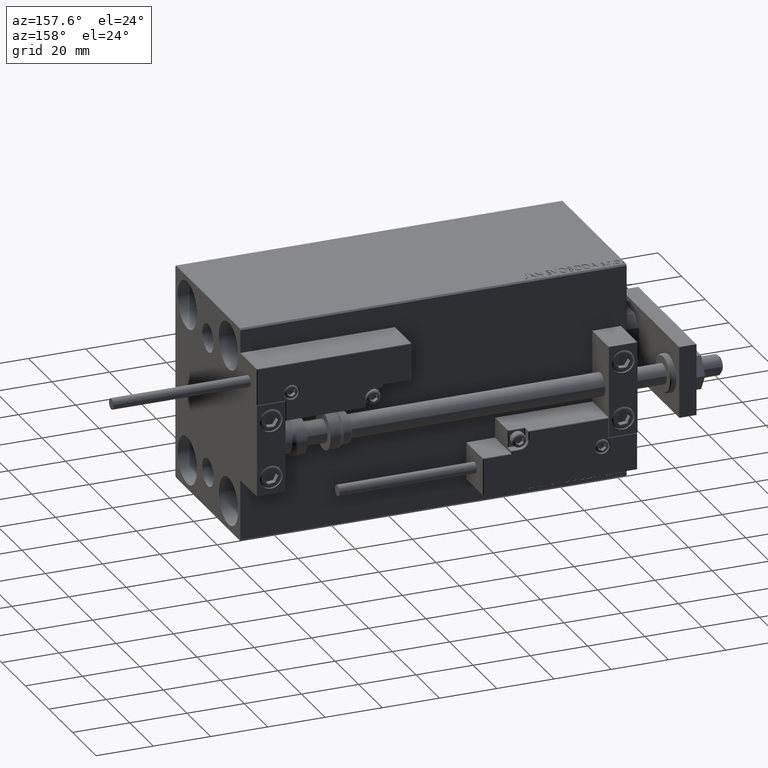
[diagram: clean part render]
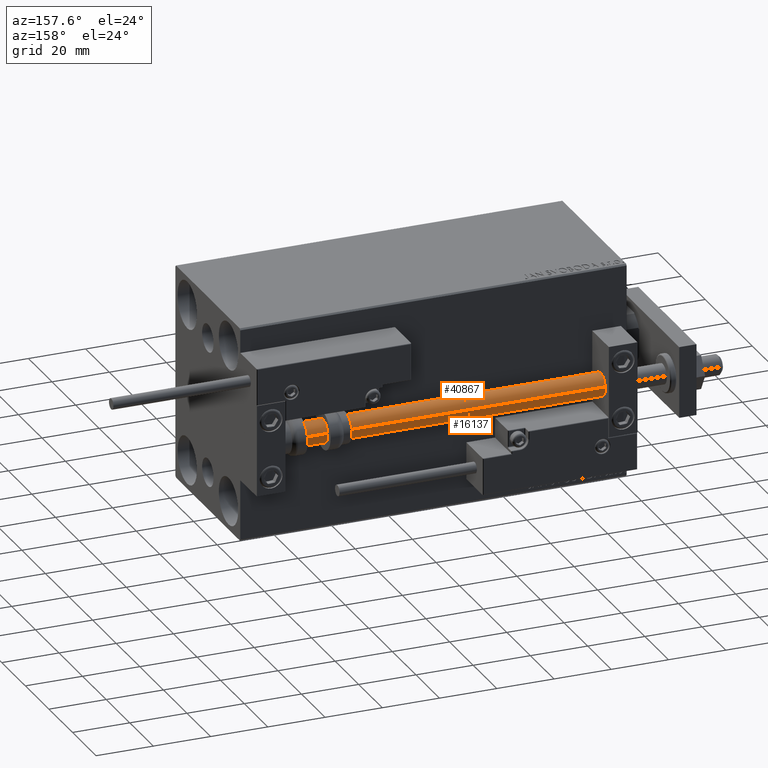
[diagram: same view with one multi-face feature highlighted, each face labeled with its STEP entity id]
A machine part, auxiliary view. The highlighted faces form ONE feature: a constant-radius fillet chain: 2 tangent blend faces with common blend radius 4 mm. The faces share edges in the B-rep.
Their STEP definitions:
[1] entity #16137 (Cylinder):
#208 = DIRECTION ( 'NONE',  ( 1.000000000000000000, 0.000000000000000000, 0.000000000000000000 ) ) ;
#1328 = DIRECTION ( 'NONE',  ( 1.000000000000000000, 0.000000000000000000, 0.000000000000000000 ) ) ;
#1593 = VECTOR ( 'NONE', #35626, 1000.000000000000000 ) ;
#1661 = LINE ( 'NONE', #47833, #13632 ) ;
#4549 = ORIENTED_EDGE ( 'NONE', *, *, #26701, .F. ) ;
#4806 = CIRCLE ( 'NONE', #25752, 4.000000000000000000 ) ;
#6650 = CARTESIAN_POINT ( 'NONE',  ( 4.000000000000000000, 4.898587196589412829E-16, 135.0000000000000000 ) ) ;
#8351 = VERTEX_POINT ( 'NONE', #39317 ) ;
#8923 = DIRECTION ( 'NONE',  ( -0.000000000000000000, -0.000000000000000000, -1.000000000000000000 ) ) ;
#11617 = ORIENTED_EDGE ( 'NONE', *, *, #12678, .T. ) ;
#12319 = EDGE_CURVE ( 'NONE', #23657, #43020, #24142, .T. ) ;
#12678 = EDGE_CURVE ( 'NONE', #8351, #23657, #1661, .T. ) ;
#13632 = VECTOR ( 'NONE', #40283, 1000.000000000000000 ) ;
#16137 = ADVANCED_FACE ( 'NONE', ( #16256 ), #20307, .T. ) ;
#16256 = FACE_OUTER_BOUND ( 'NONE', #39174, .T. ) ;
#18511 = AXIS2_PLACEMENT_3D ( 'NONE', #47028, #8923, #31679 ) ;
#20307 = CYLINDRICAL_SURFACE ( 'NONE', #18511, 4.000000000000000000 ) ;
#23657 = VERTEX_POINT ( 'NONE', #49065 ) ;
#24142 = CIRCLE ( 'NONE', #45050, 4.000000000000000000 ) ;
#25752 = AXIS2_PLACEMENT_3D ( 'NONE', #38584, #34800, #208 ) ;
#26701 = EDGE_CURVE ( 'NONE', #8351, #45949, #4806, .T. ) ;
#27781 = EDGE_CURVE ( 'NONE', #45949, #43020, #27820, .T. ) ;
#27820 = LINE ( 'NONE', #39422, #1593 ) ;
#28856 = CARTESIAN_POINT ( 'NONE',  ( 0.000000000000000000, 0.000000000000000000, 2.000000000000029310 ) ) ;
#31679 = DIRECTION ( 'NONE',  ( -1.000000000000000000, 0.000000000000000000, 0.000000000000000000 ) ) ;
#34800 = DIRECTION ( 'NONE',  ( 0.000000000000000000, 0.000000000000000000, 1.000000000000000000 ) ) ;
#35548 = CARTESIAN_POINT ( 'NONE',  ( 4.000000000000000000, 4.898587196589412829E-16, 2.000000000000029310 ) ) ;
#35626 = DIRECTION ( 'NONE',  ( -0.000000000000000000, -0.000000000000000000, -1.000000000000000000 ) ) ;
#36417 = DIRECTION ( 'NONE',  ( -0.000000000000000000, -0.000000000000000000, 1.000000000000000000 ) ) ;
#38584 = CARTESIAN_POINT ( 'NONE',  ( 0.000000000000000000, 0.000000000000000000, 135.0000000000000000 ) ) ;
#39174 = EDGE_LOOP ( 'NONE', ( #47890, #4549, #11617, #42653 ) ) ;
#39317 = CARTESIAN_POINT ( 'NONE',  ( -4.000000000000000000, 0.000000000000000000, 135.0000000000000000 ) ) ;
#39422 = CARTESIAN_POINT ( 'NONE',  ( 4.000000000000000000, 4.898587196589412829E-16, 135.0000000000000000 ) ) ;
#40283 = DIRECTION ( 'NONE',  ( -0.000000000000000000, -0.000000000000000000, -1.000000000000000000 ) ) ;
#42653 = ORIENTED_EDGE ( 'NONE', *, *, #12319, .T. ) ;
#43020 = VERTEX_POINT ( 'NONE', #35548 ) ;
#45050 = AXIS2_PLACEMENT_3D ( 'NONE', #28856, #36417, #1328 ) ;
#45949 = VERTEX_POINT ( 'NONE', #6650 ) ;
#47028 = CARTESIAN_POINT ( 'NONE',  ( 0.000000000000000000, 0.000000000000000000, 135.0000000000000000 ) ) ;
#47833 = CARTESIAN_POINT ( 'NONE',  ( -4.000000000000000000, 0.000000000000000000, 135.0000000000000000 ) ) ;
#47890 = ORIENTED_EDGE ( 'NONE', *, *, #27781, .F. ) ;
#49065 = CARTESIAN_POINT ( 'NONE',  ( -4.000000000000000000, 0.000000000000000000, 2.000000000000029310 ) ) ;
[2] entity #40867 (Cylinder):
#536 = DIRECTION ( 'NONE',  ( 1.000000000000000000, 0.000000000000000000, 0.000000000000000000 ) ) ;
#1593 = VECTOR ( 'NONE', #35626, 1000.000000000000000 ) ;
#1661 = LINE ( 'NONE', #47833, #13632 ) ;
#1872 = AXIS2_PLACEMENT_3D ( 'NONE', #42472, #31382, #7878 ) ;
#2142 = CIRCLE ( 'NONE', #30395, 4.000000000000000000 ) ;
#6162 = EDGE_CURVE ( 'NONE', #43020, #23657, #2142, .T. ) ;
#6407 = CIRCLE ( 'NONE', #34632, 4.000000000000000000 ) ;
#6650 = CARTESIAN_POINT ( 'NONE',  ( 4.000000000000000000, 4.898587196589412829E-16, 135.0000000000000000 ) ) ;
#7878 = DIRECTION ( 'NONE',  ( -1.000000000000000000, 0.000000000000000000, 0.000000000000000000 ) ) ;
#8351 = VERTEX_POINT ( 'NONE', #39317 ) ;
#8633 = FACE_OUTER_BOUND ( 'NONE', #38964, .T. ) ;
#10946 = DIRECTION ( 'NONE',  ( 1.000000000000000000, 0.000000000000000000, 0.000000000000000000 ) ) ;
#12678 = EDGE_CURVE ( 'NONE', #8351, #23657, #1661, .T. ) ;
#13632 = VECTOR ( 'NONE', #40283, 1000.000000000000000 ) ;
#15238 = DIRECTION ( 'NONE',  ( -0.000000000000000000, -0.000000000000000000, 1.000000000000000000 ) ) ;
#20496 = DIRECTION ( 'NONE',  ( 0.000000000000000000, 0.000000000000000000, 1.000000000000000000 ) ) ;
#23657 = VERTEX_POINT ( 'NONE', #49065 ) ;
#27094 = CYLINDRICAL_SURFACE ( 'NONE', #1872, 4.000000000000000000 ) ;
#27781 = EDGE_CURVE ( 'NONE', #45949, #43020, #27820, .T. ) ;
#27820 = LINE ( 'NONE', #39422, #1593 ) ;
#29917 = CARTESIAN_POINT ( 'NONE',  ( 0.000000000000000000, 0.000000000000000000, 2.000000000000029310 ) ) ;
#30395 = AXIS2_PLACEMENT_3D ( 'NONE', #29917, #15238, #10946 ) ;
#31382 = DIRECTION ( 'NONE',  ( -0.000000000000000000, -0.000000000000000000, -1.000000000000000000 ) ) ;
#32072 = EDGE_CURVE ( 'NONE', #45949, #8351, #6407, .T. ) ;
#32286 = ORIENTED_EDGE ( 'NONE', *, *, #12678, .F. ) ;
#34632 = AXIS2_PLACEMENT_3D ( 'NONE', #39176, #20496, #536 ) ;
#35548 = CARTESIAN_POINT ( 'NONE',  ( 4.000000000000000000, 4.898587196589412829E-16, 2.000000000000029310 ) ) ;
#35626 = DIRECTION ( 'NONE',  ( -0.000000000000000000, -0.000000000000000000, -1.000000000000000000 ) ) ;
#38964 = EDGE_LOOP ( 'NONE', ( #48228, #45211, #42378, #32286 ) ) ;
#39176 = CARTESIAN_POINT ( 'NONE',  ( 0.000000000000000000, 0.000000000000000000, 135.0000000000000000 ) ) ;
#39317 = CARTESIAN_POINT ( 'NONE',  ( -4.000000000000000000, 0.000000000000000000, 135.0000000000000000 ) ) ;
#39422 = CARTESIAN_POINT ( 'NONE',  ( 4.000000000000000000, 4.898587196589412829E-16, 135.0000000000000000 ) ) ;
#40283 = DIRECTION ( 'NONE',  ( -0.000000000000000000, -0.000000000000000000, -1.000000000000000000 ) ) ;
#40867 = ADVANCED_FACE ( 'NONE', ( #8633 ), #27094, .T. ) ;
#42378 = ORIENTED_EDGE ( 'NONE', *, *, #6162, .T. ) ;
#42472 = CARTESIAN_POINT ( 'NONE',  ( 0.000000000000000000, 0.000000000000000000, 135.0000000000000000 ) ) ;
#43020 = VERTEX_POINT ( 'NONE', #35548 ) ;
#45211 = ORIENTED_EDGE ( 'NONE', *, *, #27781, .T. ) ;
#45949 = VERTEX_POINT ( 'NONE', #6650 ) ;
#47833 = CARTESIAN_POINT ( 'NONE',  ( -4.000000000000000000, 0.000000000000000000, 135.0000000000000000 ) ) ;
#48228 = ORIENTED_EDGE ( 'NONE', *, *, #32072, .F. ) ;
#49065 = CARTESIAN_POINT ( 'NONE',  ( -4.000000000000000000, 0.000000000000000000, 2.000000000000029310 ) ) ;